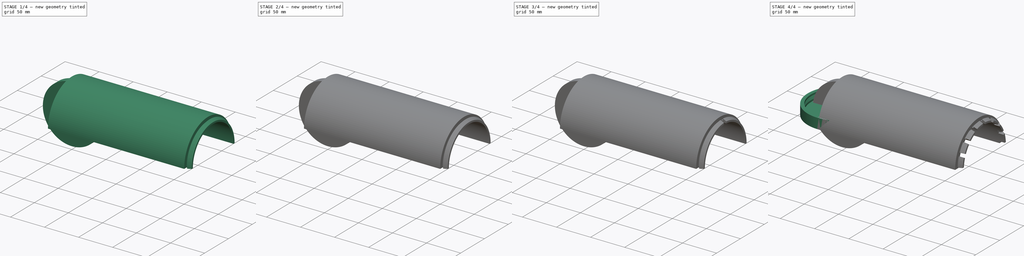
[diagram: build sequence overview — one tinted view per stage of 4, left to right]
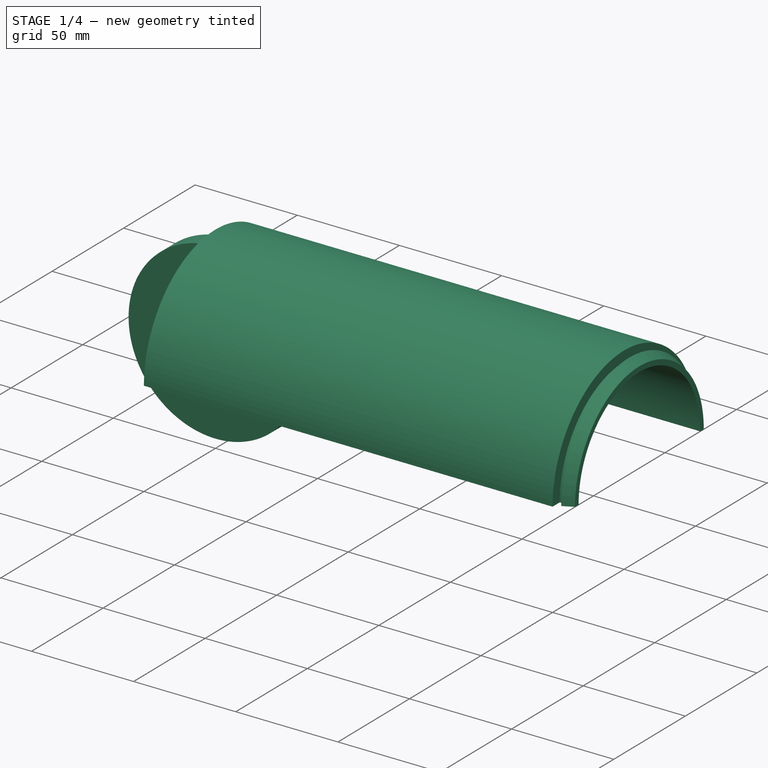
[diagram: stage 1 of 4 — iso view after this stage's code; geometry added in this stage tinted green]
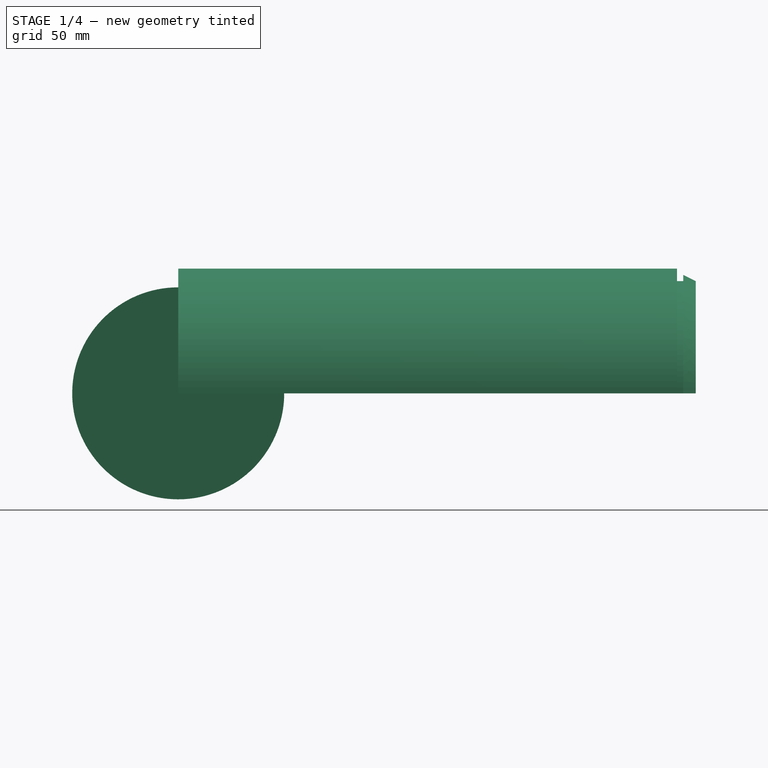
[diagram: stage 1 of 4 — front view after this stage's code; geometry added in this stage tinted green]
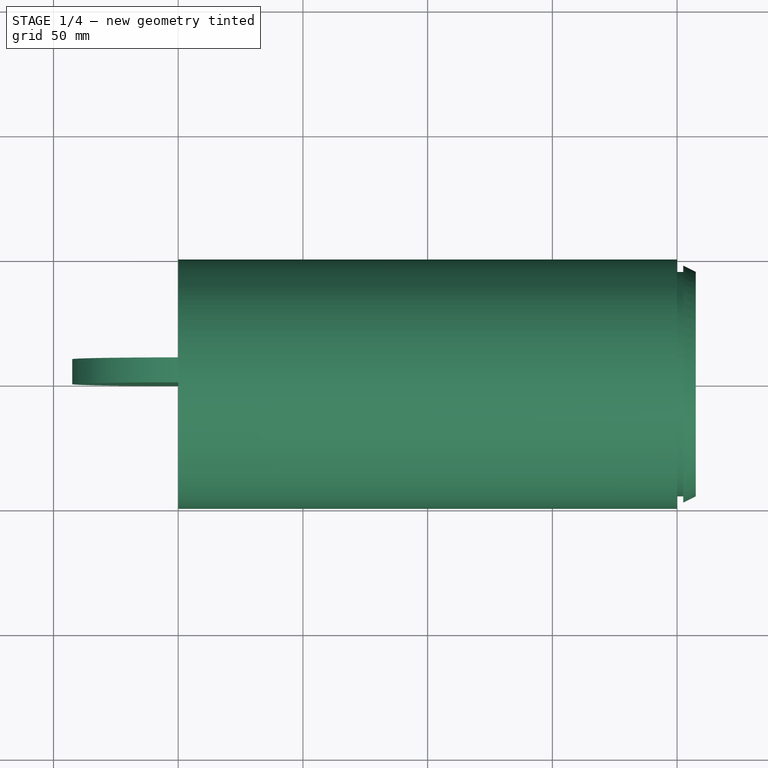
[diagram: stage 1 of 4 — top view after this stage's code; geometry added in this stage tinted green]
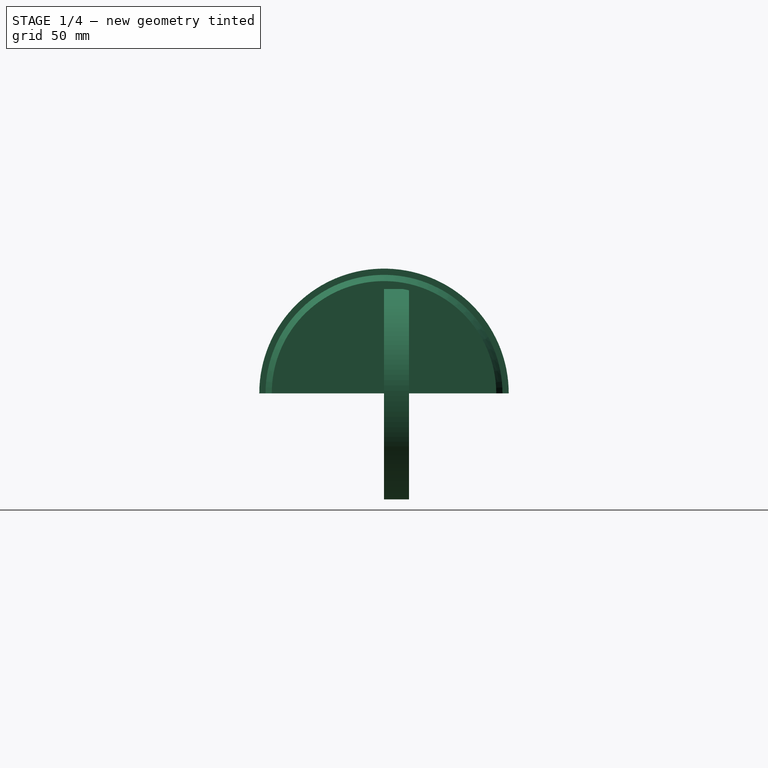
[diagram: stage 1 of 4 — right view after this stage's code; geometry added in this stage tinted green]
FCSTD DOCUMENT  (FreeCAD 1.0R39319 (Git))
Label: Case
License: All rights reserved
LicenseURL: https://en.wikipedia.org/wiki/All_rights_reserved
objects: Sketcher::SketchObject×9, PartDesign::Revolution×4, PartDesign::Pocket×4, PartDesign::Body×4, PartDesign::PolarPattern×2, PartDesign::Pad×1
note: 53 computed .brp shape members not serialized (recipe doc carries the construction recipe); baked Part::Feature solids carry a one-line shape summary decoded from their .brp

FEATURE [PartDesign::Body] Body002  label="Half 2"
  AllowCompound = false
  Group = -> [Revolution002,Sketch003,Sketch004,Pocket001,Sketch005,Pocket002,PolarPattern]
  Origin = -> Origin002
  Tip = -> PolarPattern
FEATURE [Sketcher::SketchObject] Sketch006
  ArcFitTolerance = 1e-06
  AttachmentSupport = -> [XY_Plane003]
  FullyConstrained = true
  MakeInternals = false
  MapMode = 5
  sketch-geometry (10):
    g0: LineSegment StartX=0 StartY=0 StartZ=0 EndX=0 EndY=50 EndZ=0
    g1: LineSegment StartX=0 StartY=50 StartZ=0 EndX=200 EndY=50 EndZ=0
    g2: LineSegment StartX=200 StartY=50 StartZ=0 EndX=200 EndY=45 EndZ=0
    g3: LineSegment StartX=200 StartY=45 StartZ=0 EndX=202.5 EndY=45 EndZ=0
    g4: LineSegment StartX=202.5 StartY=45 StartZ=0 EndX=202.5 EndY=47.5 EndZ=0
    g5: LineSegment StartX=202.5 StartY=47.5 StartZ=0 EndX=207.5 EndY=45 EndZ=0
    g6: LineSegment StartX=207.5 StartY=45 StartZ=0 EndX=207.5 EndY=42.5 EndZ=0
    g7: LineSegment StartX=207.5 StartY=42.5 StartZ=0 EndX=7.5 EndY=42.5 EndZ=0
    g8: LineSegment StartX=7.5 StartY=42.5 StartZ=0 EndX=7.5 EndY=0 EndZ=0
    g9: LineSegment StartX=0 StartY=0 StartZ=0 EndX=7.5 EndY=0 EndZ=0
  constraints (29):
    c: Distance(g0) = 50
    c: Coincident(g0,g-1)
    c: PointOnObject(g0,g-2)
    c: Distance(g1) = 200
    c: Coincident(g1,g0)
    c: Horizontal(g1)
    c: Distance(g2) = 5
    c: Coincident(g2,g1)
    c: Vertical(g2)
    c: Distance(g3) = 2.5
    c: Coincident(g3,g2)
    c: Horizontal(g3)
    c: Distance(g4) = 2.5
    c: Coincident(g4,g3)
    c: Vertical(g4)
    c: Coincident(g5,g4)
    c: PointOnObject(g5,g3)
    c: Distance(g5,g4) = 5
    c: Distance(g6) = 2.5
    c: Coincident(g6,g5)
    c: Vertical(g6)
    c: Distance(g7) = 200
    c: Coincident(g7,g6)
    c: Horizontal(g7)
    c: Coincident(g8,g7)
    c: PointOnObject(g8,g-1)
    c: Vertical(g8)
    c: Coincident(g9,g0)
    c: Coincident(g9,g8)
FEATURE [PartDesign::Revolution] Revolution003
  Angle = 180
  Angle2 = 60
  Axis = (1,0,0)
  Base = (0,0,0)
  Profile = -> Sketch006
  ReferenceAxis = -> X_Axis003
  Refine = true
  Suppressed = false
  Type = 0
FEATURE [PartDesign::Body] Body003  label="Half 003"
  AllowCompound = false
  Group = -> [Revolution003,Sketch006,Sketch008,Pocket004,PolarPattern001]
  Origin = -> Origin003
  Tip = -> PolarPattern001
FEATURE [Sketcher::SketchObject] Sketch
  ArcFitTolerance = 1e-06
  AttachmentSupport = -> [YZ_Plane]
  FullyConstrained = true
  MakeInternals = false
  MapMode = 5
  Placement = pos=(0,0,0) rot=(0.57735,0.57735,0.57735;2.0944rad)
  sketch-geometry (6):
    g0: LineSegment StartX=0 StartY=0 StartZ=0 EndX=0 EndY=42.5 EndZ=0
    g1: LineSegment StartX=0 StartY=42.5 StartZ=0 EndX=10 EndY=42.5 EndZ=0
    g2: LineSegment StartX=10 StartY=42.5 StartZ=0 EndX=10 EndY=40 EndZ=0
    g3: LineSegment StartX=10 StartY=40 StartZ=0 EndX=2.5 EndY=40 EndZ=0
    g4: LineSegment StartX=2.5 StartY=40 StartZ=0 EndX=2.5 EndY=0 EndZ=0
    g5: LineSegment StartX=0 StartY=0 StartZ=0 EndX=2.5 EndY=0 EndZ=0
  constraints (17):
    c: Distance(g0) = 42.5
    c: Coincident(g0,g-1)
    c: PointOnObject(g0,g-2)
    c: Distance(g1) = 10
    c: Coincident(g1,g0)
    c: Horizontal(g1)
    c: Distance(g2) = 2.5
    c: Coincident(g2,g1)
    c: Vertical(g2)
    c: Distance(g3) = 7.5
    c: Coincident(g3,g2)
    c: Horizontal(g3)
    c: Coincident(g4,g3)
    c: PointOnObject(g4,g-1)
    c: Vertical(g4)
    c: Coincident(g5,g0)
    c: Coincident(g5,g4)
FEATURE [PartDesign::Revolution] Revolution
  Angle = 360
  Angle2 = 60
  Axis = (1e-16,1,-1e-16)
  Base = (0,0,0)
  Placement = pos=(0,0,0) rot=(1,1,1;2.0944rad)
  Profile = -> Sketch
  ReferenceAxis = -> Y_Axis
  Refine = true
  Suppressed = false
  Type = 0
FEATURE [Sketcher::SketchObject] Sketch009
  ArcFitTolerance = 1e-06
  AttachmentSupport = -> [Revolution]
  FullyConstrained = true
  MakeInternals = false
  MapMode = 5
  Placement = pos=(3e-16,2.5,-1.1e-15) rot=(0.57735,0.57735,0.57735;4.18879rad)
  sketch-geometry (8):
    g0: LineSegment [constr] StartX=-8 StartY=16 StartZ=0 EndX=-8 EndY=-16 EndZ=0
    g1: LineSegment [constr] StartX=-8 StartY=-16 StartZ=0 EndX=8 EndY=-16 EndZ=0
    g2: LineSegment [constr] StartX=8 StartY=-16 StartZ=0 EndX=8 EndY=16 EndZ=0
    g3: LineSegment [constr] StartX=8 StartY=16 StartZ=0 EndX=-8 EndY=16 EndZ=0
    g4: Circle CenterX=8 CenterY=16 CenterZ=0 NormalX=0 NormalY=0 NormalZ=1 AngleXU=0 Radius=1
    g5: Circle CenterX=8 CenterY=-16 CenterZ=0 NormalX=0 NormalY=0 NormalZ=1 AngleXU=0 Radius=1
    g6: Circle CenterX=-8 CenterY=-16 CenterZ=0 NormalX=0 NormalY=0 NormalZ=1 AngleXU=0 Radius=1
    g7: Circle CenterX=-8 CenterY=16 CenterZ=0 NormalX=0 NormalY=0 NormalZ=1 AngleXU=0 Radius=1
  constraints (20):
    c: Coincident(g0,g1)
    c: Coincident(g1,g2)
    c: Coincident(g2,g3)
    c: Coincident(g3,g0)
    c: Vertical(g0)
    c: Vertical(g2)
    c: Horizontal(g1)
    c: Horizontal(g3)
    c: Distance(g0,g2) = 16
    c: Distance(g1,g3) = 32
    c: Distance(g-1,g3) = 16
    c: Distance(g2,g-2) = 8
    c: Diameter(g4) = 2
    c: Coincident(g4,g2)
    c: Diameter(g5) = 2
    c: Coincident(g5,g1)
    c: Diameter(g6) = 2
    c: Coincident(g6,g0)
    c: Diameter(g7) = 2
    c: Coincident(g7,g0)
FEATURE [PartDesign::Pad] Pad
  BaseFeature = -> Revolution
  Direction = (0,1,0)
  Length = 2
  Length2 = 10
  Placement = pos=(0,0,0) rot=(1,1,1;2.0944rad)
  Profile = -> Sketch009
  ReferenceAxis = -> Sketch009 [N_Axis]
  Refine = true
  Suppressed = false
  Type = 0
FEATURE [PartDesign::Body] Body  label="Holder"
  AllowCompound = false
  Group = -> [Sketch,Revolution,Sketch009,Pad]
  Origin = -> Origin
  Tip = -> Pad
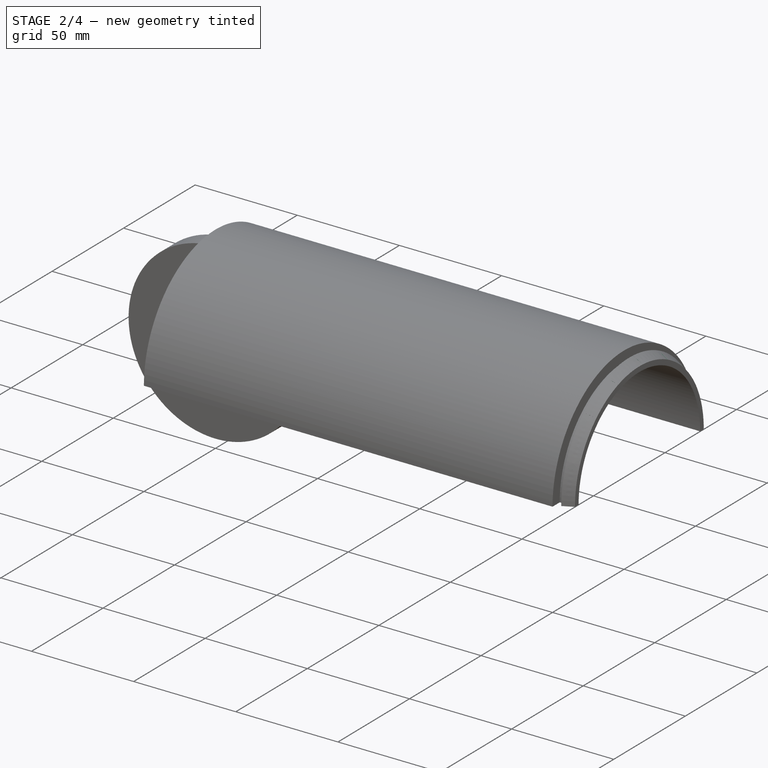
[diagram: stage 2 of 4 — iso view after this stage's code; geometry added in this stage tinted green]
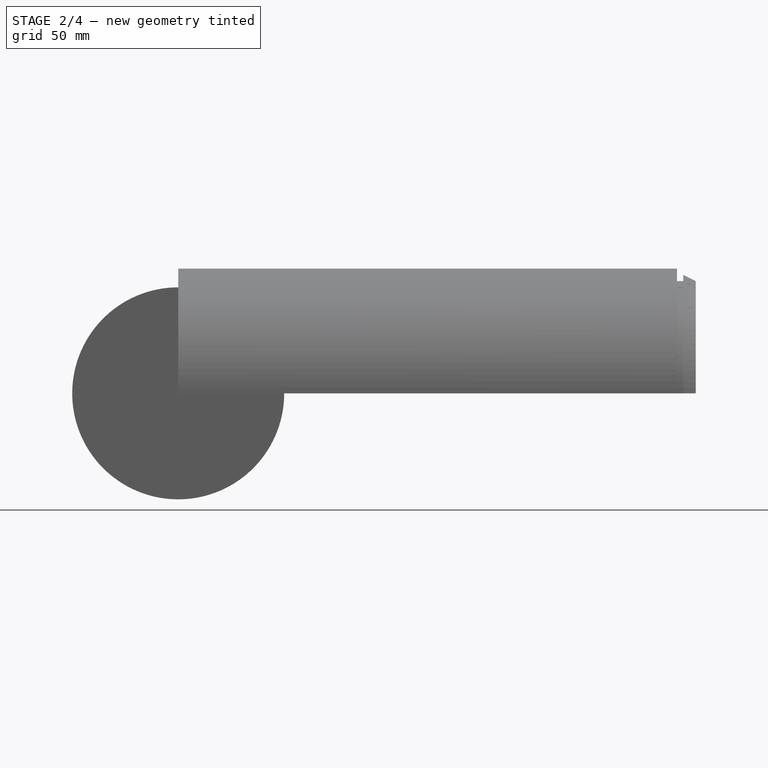
[diagram: stage 2 of 4 — front view after this stage's code; geometry added in this stage tinted green]
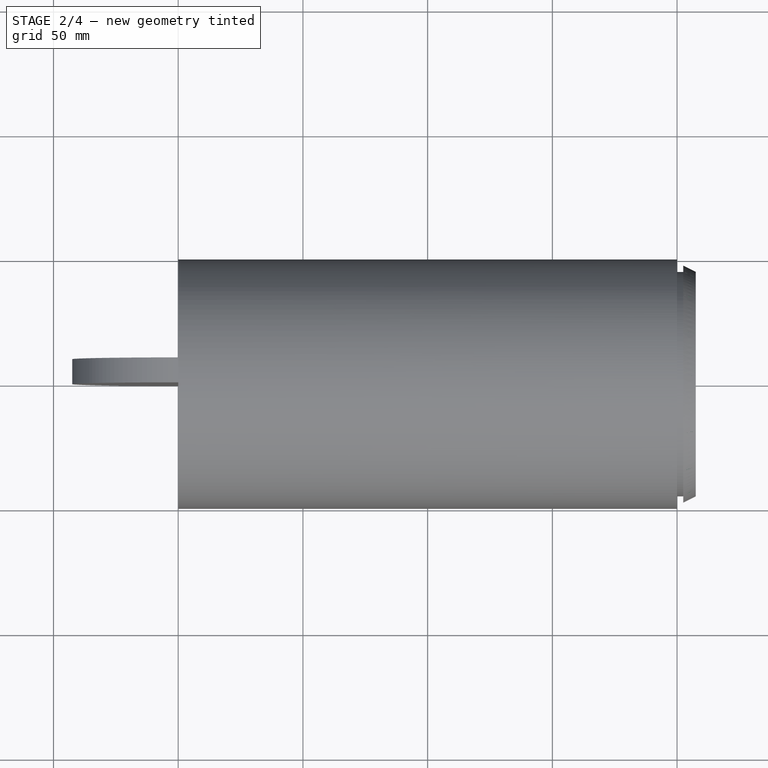
[diagram: stage 2 of 4 — top view after this stage's code; geometry added in this stage tinted green]
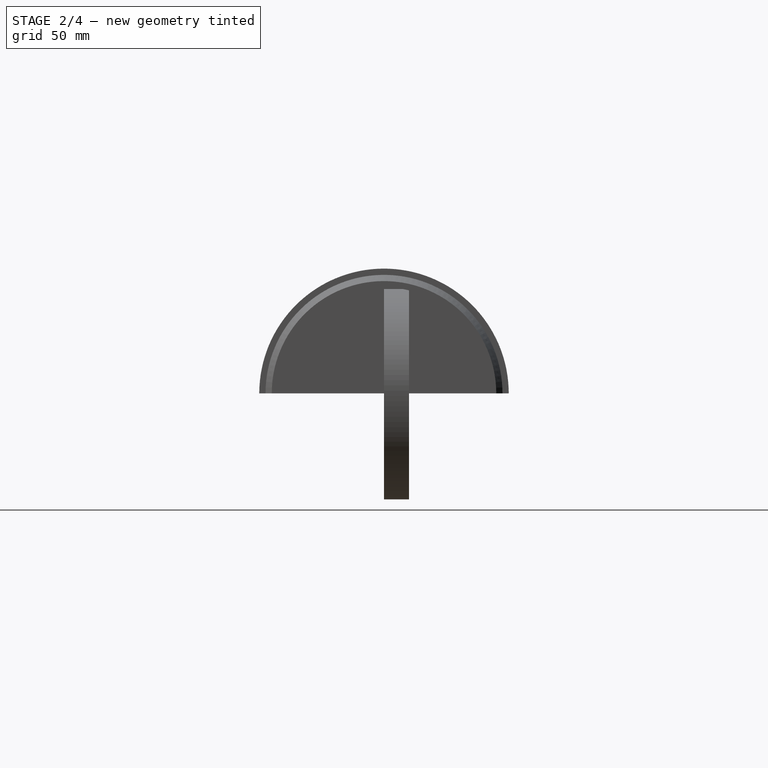
[diagram: stage 2 of 4 — right view after this stage's code; geometry added in this stage tinted green]
FEATURE [PartDesign::Body] Body001  label="Cap"
  AllowCompound = false
  Group = -> [Sketch001,Revolution001,Sketch002,Pocket]
  Origin = -> Origin001
  Tip = -> Pocket
FEATURE [Sketcher::SketchObject] Sketch003
  ArcFitTolerance = 1e-06
  AttachmentSupport = -> [XY_Plane002]
  FullyConstrained = true
  MakeInternals = false
  MapMode = 5
  sketch-geometry (10):
    g0: LineSegment StartX=0 StartY=0 StartZ=0 EndX=0 EndY=50 EndZ=0
    g1: LineSegment StartX=0 StartY=50 StartZ=0 EndX=200 EndY=50 EndZ=0
    g2: LineSegment StartX=200 StartY=50 StartZ=0 EndX=200 EndY=45 EndZ=0
    g3: LineSegment StartX=200 StartY=45 StartZ=0 EndX=202.5 EndY=45 EndZ=0
    g4: LineSegment StartX=202.5 StartY=45 StartZ=0 EndX=202.5 EndY=47.5 EndZ=0
    g5: LineSegment StartX=202.5 StartY=47.5 StartZ=0 EndX=207.5 EndY=45 EndZ=0
    g6: LineSegment StartX=207.5 StartY=45 StartZ=0 EndX=207.5 EndY=42.5 EndZ=0
    g7: LineSegment StartX=207.5 StartY=42.5 StartZ=0 EndX=7.5 EndY=42.5 EndZ=0
    g8: LineSegment StartX=7.5 StartY=42.5 StartZ=0 EndX=7.5 EndY=0 EndZ=0
    g9: LineSegment StartX=0 StartY=0 StartZ=0 EndX=7.5 EndY=0 EndZ=0
  constraints (29):
    c: Distance(g0) = 50
    c: Coincident(g0,g-1)
    c: PointOnObject(g0,g-2)
    c: Distance(g1) = 200
    c: Coincident(g1,g0)
    c: Horizontal(g1)
    c: Distance(g2) = 5
    c: Coincident(g2,g1)
    c: Vertical(g2)
    c: Distance(g3) = 2.5
    c: Coincident(g3,g2)
    c: Horizontal(g3)
    c: Distance(g4) = 2.5
    c: Coincident(g4,g3)
    c: Vertical(g4)
    c: Coincident(g5,g4)
    c: PointOnObject(g5,g3)
    c: Distance(g5,g4) = 5
    c: Distance(g6) = 2.5
    c: Coincident(g6,g5)
    c: Vertical(g6)
    c: Distance(g7) = 200
    c: Coincident(g7,g6)
    c: Horizontal(g7)
    c: Coincident(g8,g7)
    c: PointOnObject(g8,g-1)
    c: Vertical(g8)
    c: Coincident(g9,g0)
    c: Coincident(g9,g8)
FEATURE [PartDesign::Revolution] Revolution002
  Angle = 180
  Angle2 = 60
  Axis = (1,0,0)
  Base = (0,0,0)
  Profile = -> Sketch003
  ReferenceAxis = -> X_Axis002
  Refine = true
  Suppressed = false
  Type = 0
FEATURE [Sketcher::SketchObject] Sketch008
  ArcFitTolerance = 1e-06
  AttachmentSupport = -> [XY_Plane003]
  FullyConstrained = true
  MakeInternals = false
  MapMode = 5
  sketch-geometry (4):
    g0: LineSegment StartX=210 StartY=2.5 StartZ=0 EndX=200 EndY=2.5 EndZ=0
    g1: LineSegment StartX=200 StartY=2.5 StartZ=0 EndX=200 EndY=-2.5 EndZ=0
    g2: LineSegment StartX=200 StartY=-2.5 StartZ=0 EndX=210 EndY=-2.5 EndZ=0
    g3: LineSegment StartX=210 StartY=-2.5 StartZ=0 EndX=210 EndY=2.5 EndZ=0
  constraints (12):
    c: Coincident(g0,g1)
    c: Coincident(g1,g2)
    c: Coincident(g2,g3)
    c: Coincident(g3,g0)
    c: Horizontal(g0)
    c: Horizontal(g2)
    c: Vertical(g1)
    c: Vertical(g3)
    c: Distance(g1,g3) = 10
    c: Distance(g0,g2) = 5
    c: Distance(g-1,g0) = 2.5
    c: Distance(g-2,g1) = 200
FEATURE [PartDesign::Pocket] Pocket004
  BaseFeature = -> Revolution003
  Direction = (0,0,-1)
  Length = 5
  Length2 = 5
  Profile = -> Sketch008
  ReferenceAxis = -> Sketch008 [N_Axis]
  Refine = true
  Reversed = true
  Suppressed = false
  Type = 1
FEATURE [PartDesign::PolarPattern] PolarPattern001
  Angle = 360
  Axis = -> X_Axis003
  BaseFeature = -> Pocket004
  Mode = 0
  Occurrences = 16
  Offset = 120
  Originals = -> [Pocket004]
  Refine = true
  Suppressed = false
  TransformMode = 0
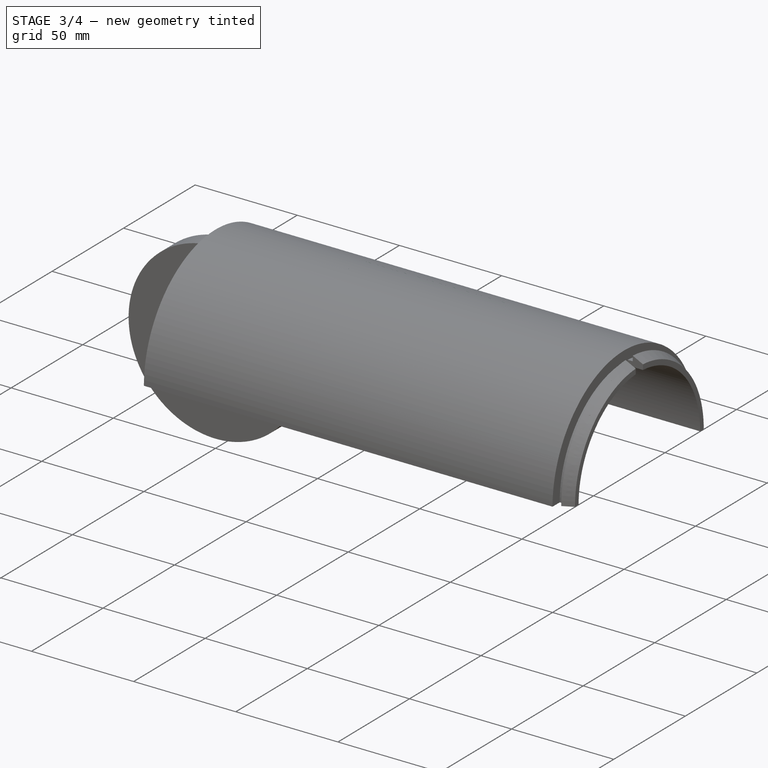
[diagram: stage 3 of 4 — iso view after this stage's code; geometry added in this stage tinted green]
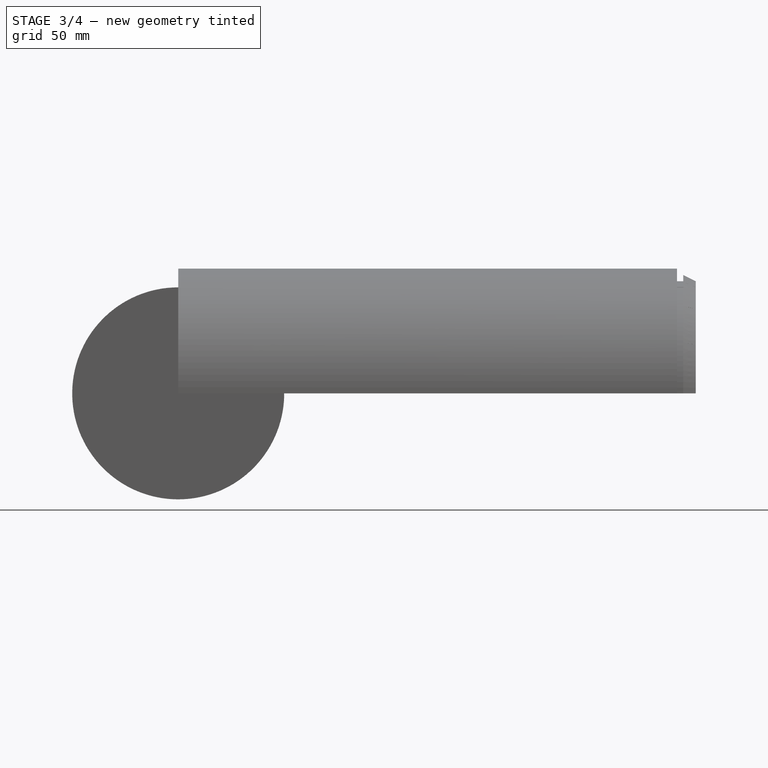
[diagram: stage 3 of 4 — front view after this stage's code; geometry added in this stage tinted green]
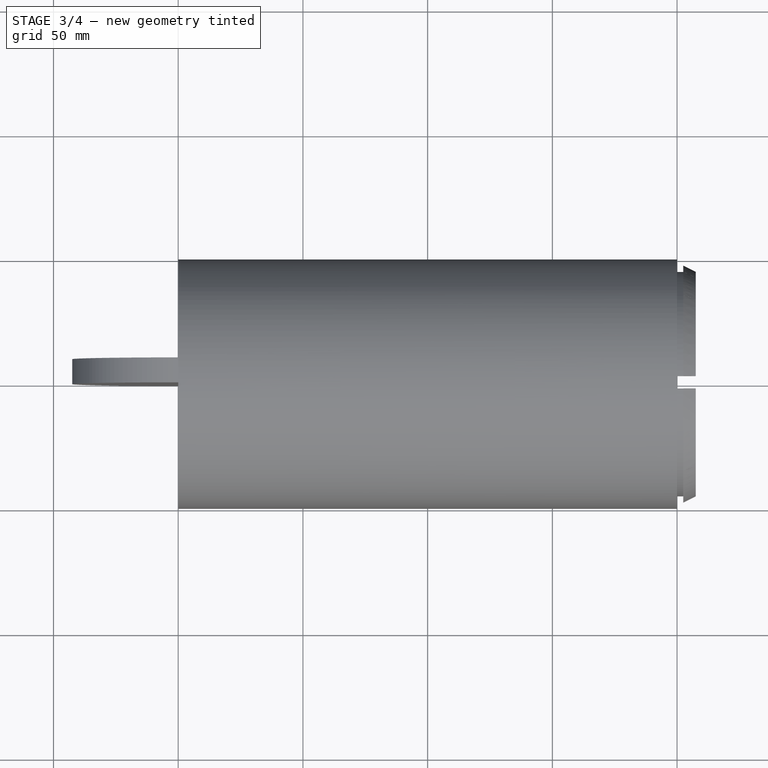
[diagram: stage 3 of 4 — top view after this stage's code; geometry added in this stage tinted green]
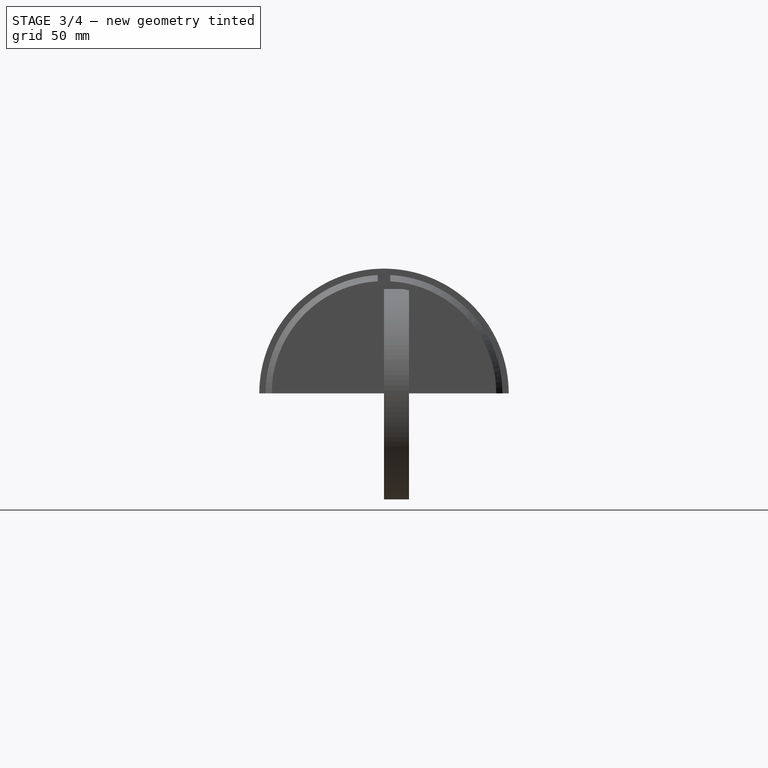
[diagram: stage 3 of 4 — right view after this stage's code; geometry added in this stage tinted green]
FEATURE [Sketcher::SketchObject] Sketch004
  ArcFitTolerance = 1e-06
  AttachmentSupport = -> [XY_Plane002]
  FullyConstrained = true
  MakeInternals = false
  MapMode = 5
  sketch-geometry (4):
    g0: LineSegment StartX=135 StartY=12.5 StartZ=0 EndX=65 EndY=12.5 EndZ=0
    g1: LineSegment StartX=65 StartY=12.5 StartZ=0 EndX=65 EndY=-12.5 EndZ=0
    g2: LineSegment StartX=65 StartY=-12.5 StartZ=0 EndX=135 EndY=-12.5 EndZ=0
    g3: LineSegment StartX=135 StartY=-12.5 StartZ=0 EndX=135 EndY=12.5 EndZ=0
  constraints (12):
    c: Coincident(g0,g1)
    c: Coincident(g1,g2)
    c: Coincident(g2,g3)
    c: Coincident(g3,g0)
    c: Horizontal(g0)
    c: Horizontal(g2)
    c: Vertical(g1)
    c: Vertical(g3)
    c: Distance(g1,g3) = 70
    c: DistanceY(g3,g3) = 25
    c: Distance(g-2,g1) = 65
    c: Distance(g-1,g2) = 12.5
FEATURE [PartDesign::Pocket] Pocket001
  BaseFeature = -> Revolution002
  Direction = (0,0,-1)
  Length = 50
  Length2 = 5
  Profile = -> Sketch004
  ReferenceAxis = -> Sketch004 [N_Axis]
  Refine = true
  Reversed = true
  Suppressed = false
  Type = 0
FEATURE [Sketcher::SketchObject] Sketch005
  ArcFitTolerance = 1e-06
  AttachmentSupport = -> [XY_Plane002]
  FullyConstrained = true
  MakeInternals = false
  MapMode = 5
  sketch-geometry (4):
    g0: LineSegment StartX=210 StartY=2.5 StartZ=0 EndX=200 EndY=2.5 EndZ=0
    g1: LineSegment StartX=200 StartY=2.5 StartZ=0 EndX=200 EndY=-2.5 EndZ=0
    g2: LineSegment StartX=200 StartY=-2.5 StartZ=0 EndX=210 EndY=-2.5 EndZ=0
    g3: LineSegment StartX=210 StartY=-2.5 StartZ=0 EndX=210 EndY=2.5 EndZ=0
  constraints (12):
    c: Coincident(g0,g1)
    c: Coincident(g1,g2)
    c: Coincident(g2,g3)
    c: Coincident(g3,g0)
    c: Horizontal(g0)
    c: Horizontal(g2)
    c: Vertical(g1)
    c: Vertical(g3)
    c: Distance(g1,g3) = 10
    c: Distance(g0,g2) = 5
    c: Distance(g-1,g0) = 2.5
    c: Distance(g-2,g1) = 200
FEATURE [PartDesign::Pocket] Pocket002
  BaseFeature = -> Pocket001
  Direction = (0,0,-1)
  Length = 5
  Length2 = 5
  Profile = -> Sketch005
  ReferenceAxis = -> Sketch005 [N_Axis]
  Refine = true
  Reversed = true
  Suppressed = false
  Type = 1
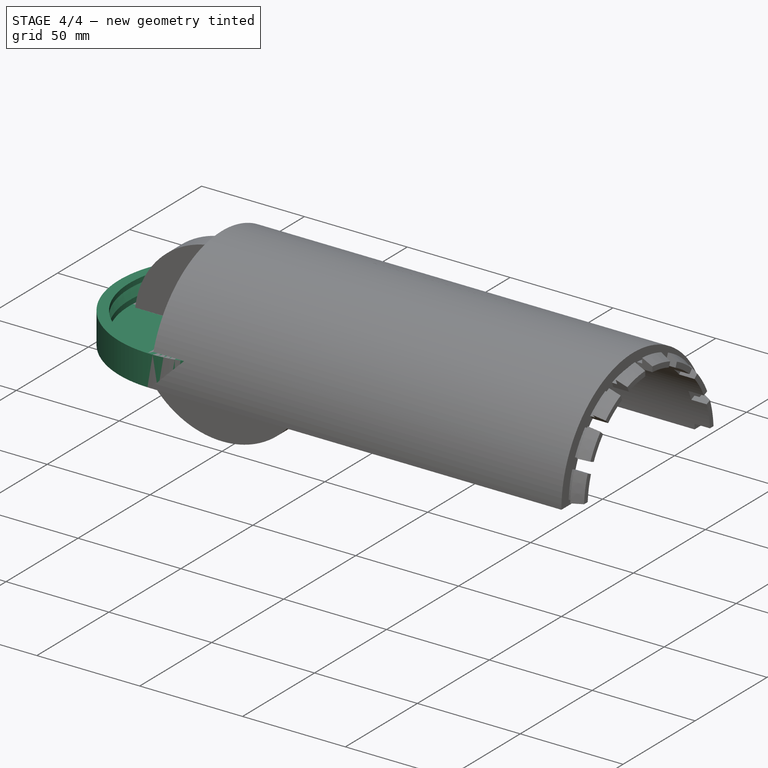
[diagram: stage 4 of 4 — iso view after this stage's code; geometry added in this stage tinted green]
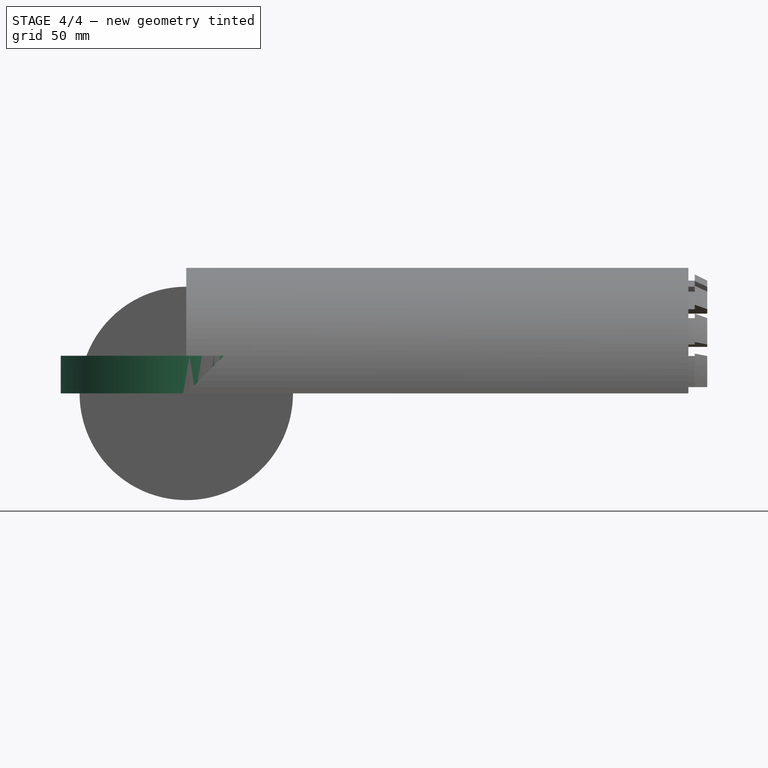
[diagram: stage 4 of 4 — front view after this stage's code; geometry added in this stage tinted green]
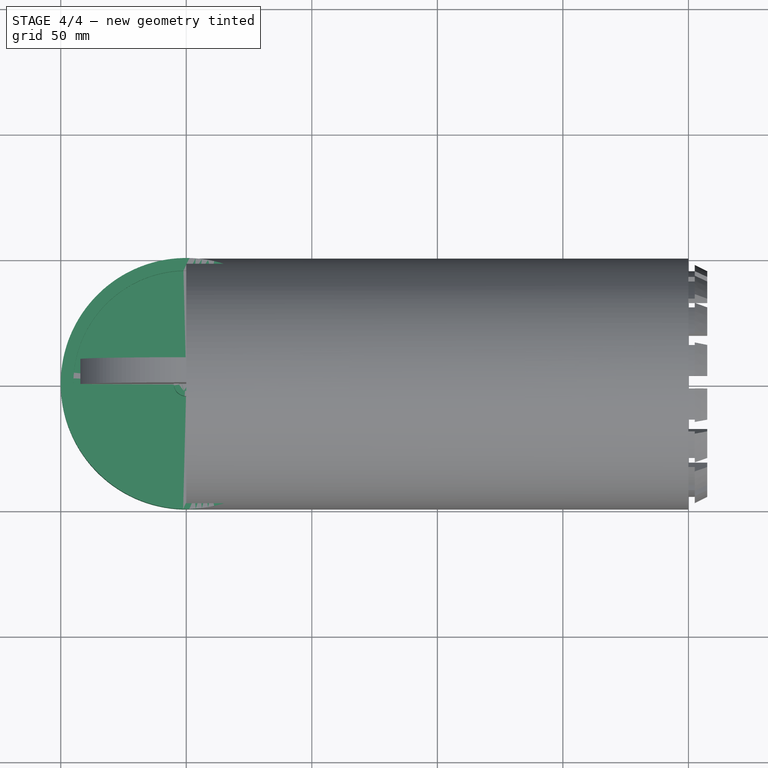
[diagram: stage 4 of 4 — top view after this stage's code; geometry added in this stage tinted green]
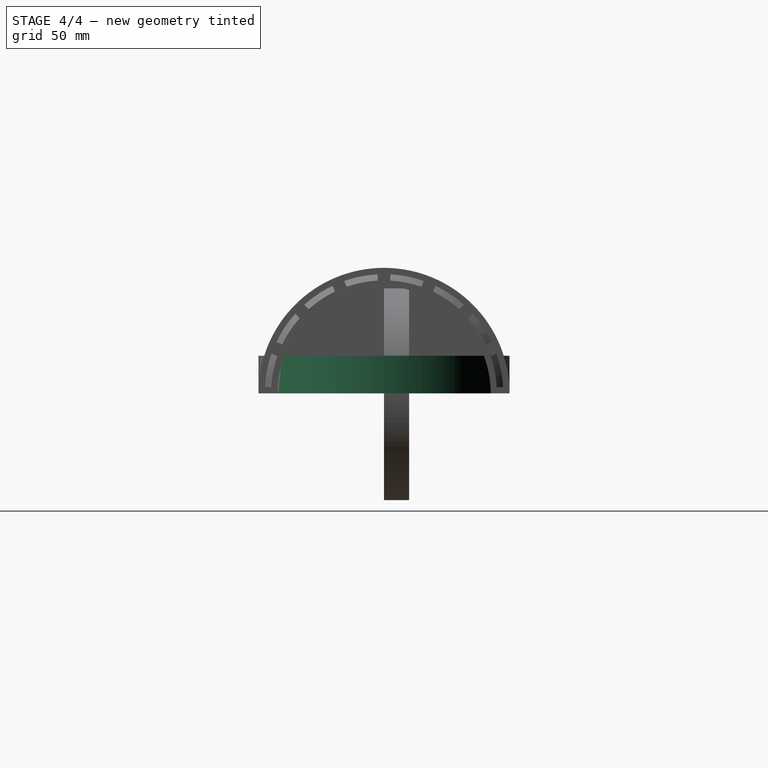
[diagram: stage 4 of 4 — right view after this stage's code; geometry added in this stage tinted green]
FEATURE [Sketcher::SketchObject] Sketch001
  ArcFitTolerance = 1e-06
  AttachmentSupport = -> [XZ_Plane001]
  FullyConstrained = false
  MakeInternals = false
  MapMode = 5
  Placement = pos=(0,0,0) rot=(1,0,0;1.5708rad)
  sketch-geometry (11):
    g0: LineSegment StartX=0 StartY=0 StartZ=0 EndX=50 EndY=0 EndZ=0
    g1: LineSegment StartX=50 StartY=0 StartZ=0 EndX=50 EndY=15 EndZ=0
    g2: LineSegment StartX=50 StartY=15 StartZ=0 EndX=45 EndY=15 EndZ=0
    g3: LineSegment StartX=45 StartY=15 StartZ=0 EndX=45 EndY=12.6 EndZ=0
    g4: LineSegment StartX=45 StartY=12.6 StartZ=0 EndX=47.5 EndY=12.6 EndZ=0
    g5: LineSegment StartX=0 StartY=15 StartZ=0 EndX=5 EndY=15 EndZ=0
    g6: LineSegment StartX=5 StartY=15 StartZ=0 EndX=5 EndY=5 EndZ=0
    g7: LineSegment StartX=5 StartY=5 StartZ=0 EndX=45 EndY=5 EndZ=0
    g8: LineSegment StartX=45 StartY=5 StartZ=0 EndX=45 EndY=7.5 EndZ=0
    g9: LineSegment StartX=45 StartY=7.5 StartZ=0 EndX=47.5 EndY=12.6 EndZ=0
    g10: LineSegment StartX=0 StartY=15 StartZ=0 EndX=0 EndY=0 EndZ=0
  constraints (30):
    c: Distance(g0) = 50
    c: PointOnObject(g0,g-1)
    c: Distance(g1) = 15
    c: Coincident(g1,g0)
    c: Vertical(g1)
    c: Distance(g2) = 5
    c: Coincident(g2,g1)
    c: Horizontal(g2)
    c: Distance(g3) = 2.4
    c: Coincident(g3,g2)
    c: Vertical(g3)
    c: Distance(g4) = 2.5
    c: Coincident(g4,g3)
    c: Horizontal(g4)
    c: Distance(g5) = 5
    c: Horizontal(g5)
    c: Distance(g6) = 10
    c: Coincident(g6,g5)
    c: Vertical(g6)
    c: Distance(g7) = 40
    c: Coincident(g7,g6)
    c: Horizontal(g7)
    c: Distance(g8) = 2.5
    c: Coincident(g8,g7)
    c: Vertical(g8)
    c: Coincident(g9,g8)
    c: Coincident(g9,g4)
    c: Coincident(g10,g5)
    c: Coincident(g10,g0)
    c: Vertical(g10)
FEATURE [PartDesign::Revolution] Revolution001
  Angle = 360
  Angle2 = 60
  Axis = (1e-16,1e-16,1)
  Base = (0,0,0)
  Placement = pos=(0,0,0) rot=(1,0,0;1.5708rad)
  Profile = -> Sketch001
  ReferenceAxis = -> Z_Axis001
  Refine = true
  Suppressed = false
  Type = 0
FEATURE [Sketcher::SketchObject] Sketch002
  ArcFitTolerance = 1e-06
  AttachmentSupport = -> [Revolution001]
  FullyConstrained = true
  MakeInternals = false
  MapMode = 5
  Placement = pos=(1.6e-15,4.9e-15,15) rot=(0,0,1;3.14159rad)
  sketch-geometry (2):
    g0: LineSegment StartX=-2.23607 StartY=-2 StartZ=0 EndX=2.23607 EndY=-2 EndZ=0
    g1: ArcOfCircle CenterX=0 CenterY=0 CenterZ=0 NormalX=0 NormalY=0 NormalZ=1 AngleXU=0 Radius=3 StartAngle=5.55346 EndAngle=10.1545
  constraints (6):
    c: Horizontal(g0)
    c: Coincident(g1,g-1)
    c: Coincident(g1,g0)
    c: Coincident(g1,g0)
    c: Distance(g1,g0) = 2
    c: Radius(g1) = 3
FEATURE [PartDesign::Pocket] Pocket
  BaseFeature = -> Revolution001
  Direction = (0,0,-1)
  Length = 5
  Length2 = 5
  Placement = pos=(0,0,0) rot=(1,0,0;1.5708rad)
  Profile = -> Sketch002
  ReferenceAxis = -> Sketch002 [N_Axis]
  Refine = true
  Suppressed = false
  Type = 0
FEATURE [PartDesign::PolarPattern] PolarPattern
  Angle = 360
  Axis = -> X_Axis002
  BaseFeature = -> Pocket002
  Mode = 0
  Occurrences = 16
  Offset = 120
  Originals = -> [Pocket002]
  Refine = true
  Suppressed = false
  TransformMode = 0
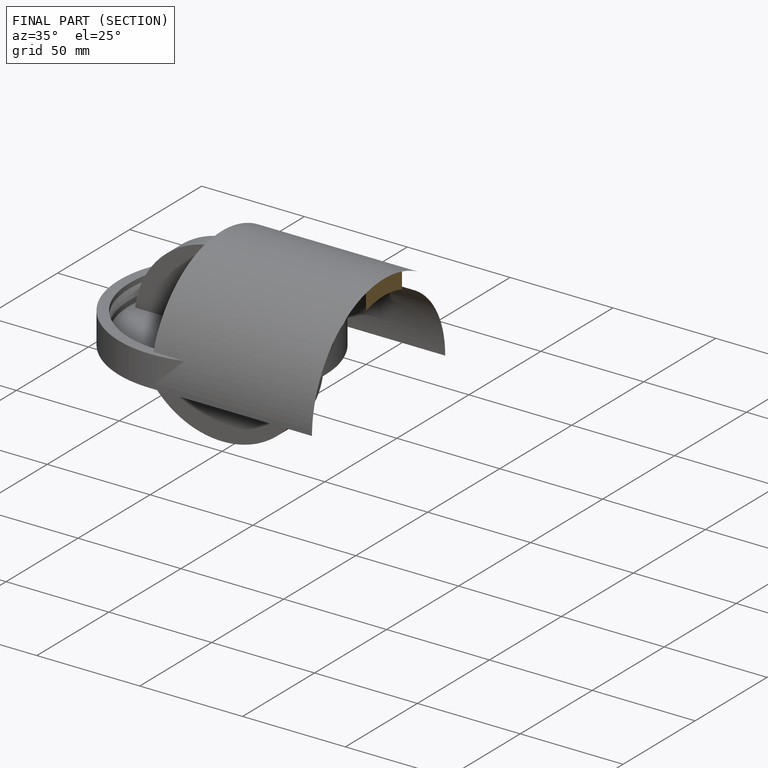
[diagram: finished part — half-section view (interior)]
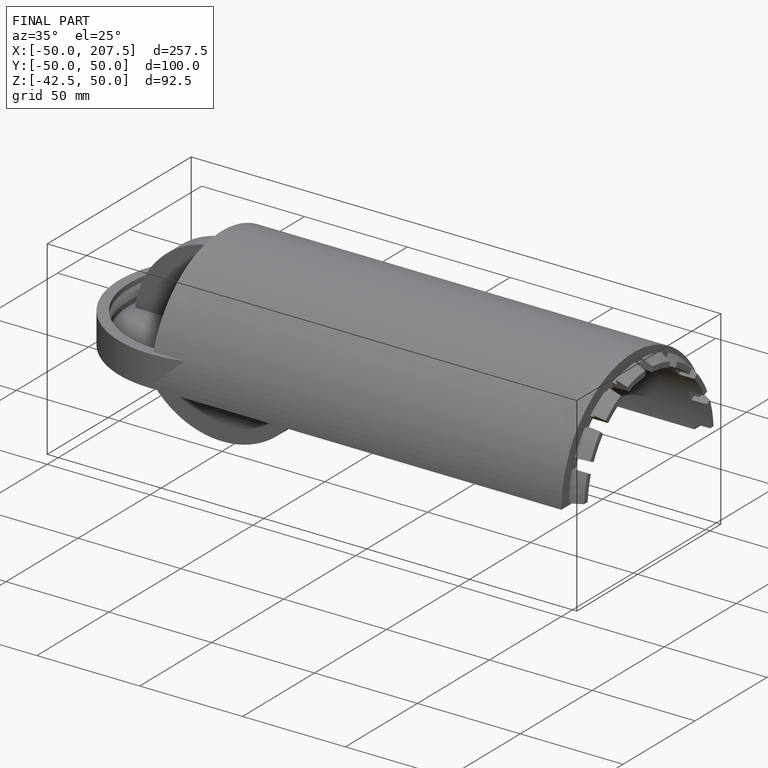
[diagram: finished part — iso view with bounding-box wireframe]
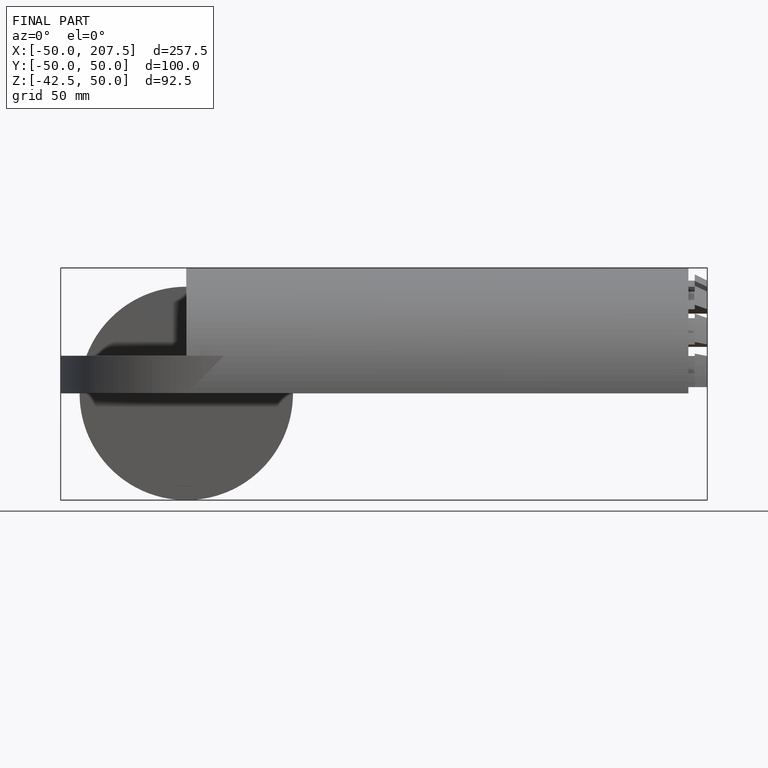
[diagram: finished part — front view with bounding-box wireframe]
